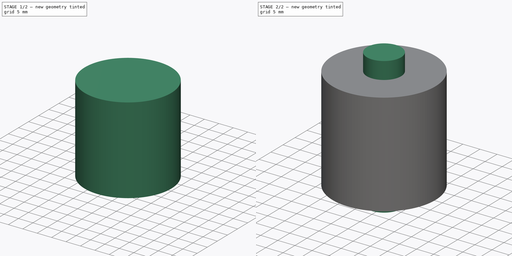
[diagram: build sequence overview — one tinted view per stage of 2, left to right]
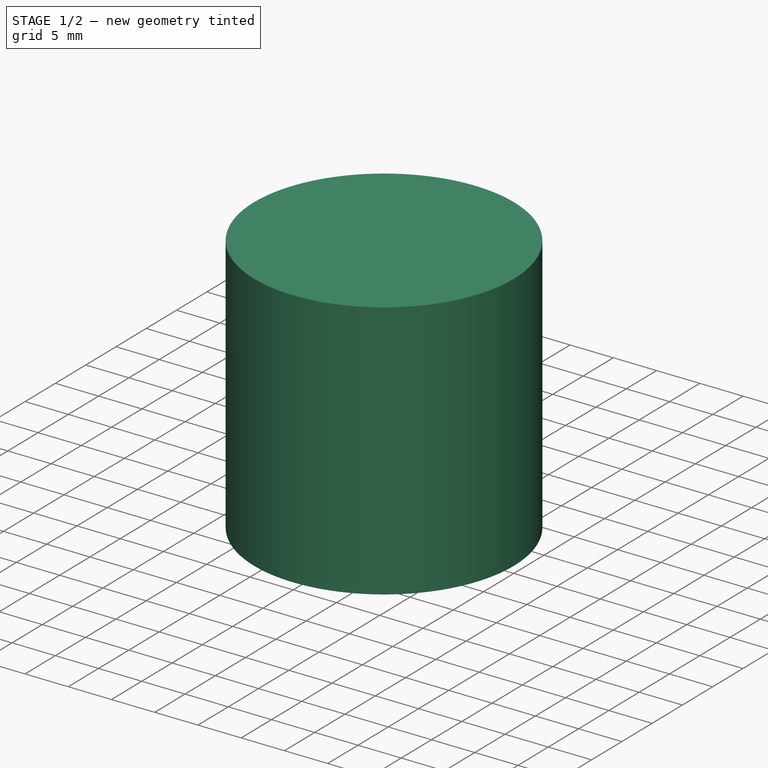
[diagram: stage 1 of 2 — iso view after this stage's code; geometry added in this stage tinted green]
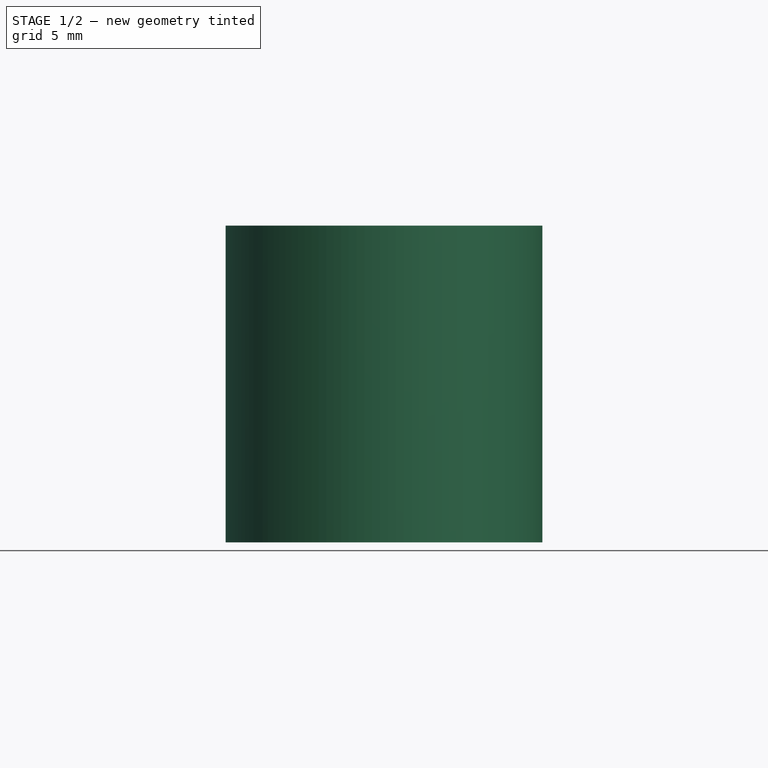
[diagram: stage 1 of 2 — front view after this stage's code; geometry added in this stage tinted green]
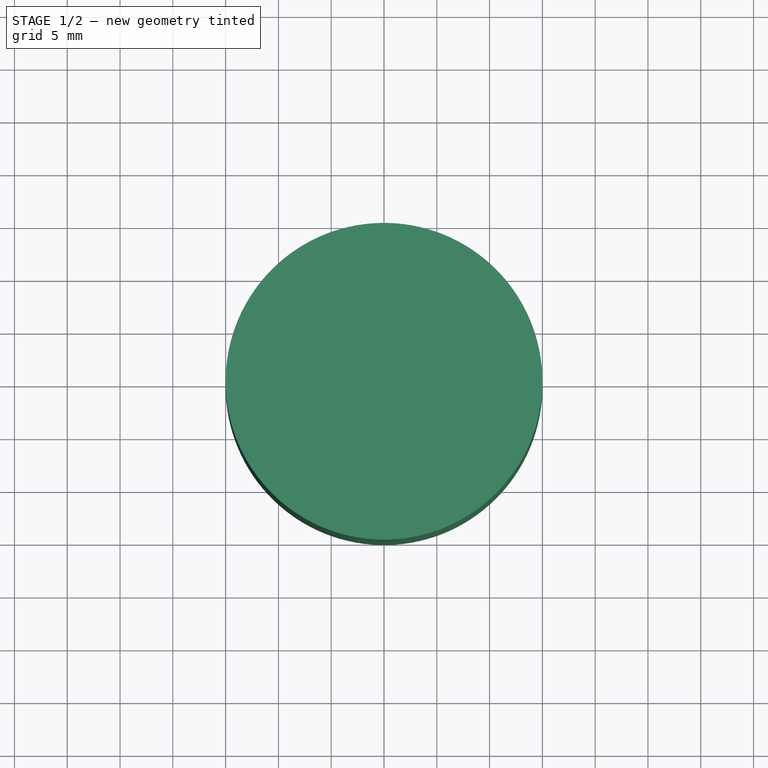
[diagram: stage 1 of 2 — top view after this stage's code; geometry added in this stage tinted green]
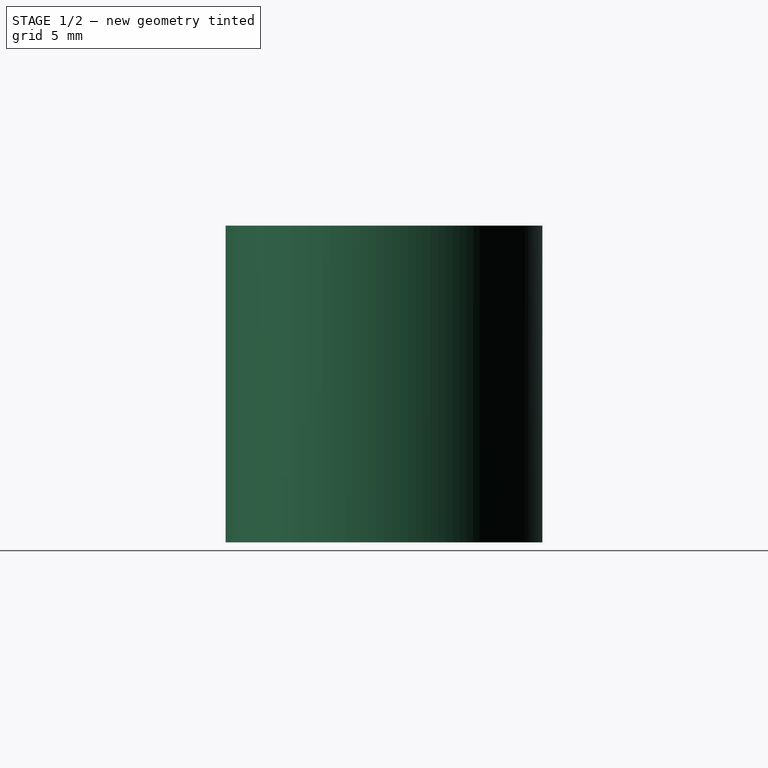
[diagram: stage 1 of 2 — right view after this stage's code; geometry added in this stage tinted green]
FCSTD DOCUMENT  (FreeCAD 0.20R28904 (Git))
Label: pottery-roller
License: All rights reserved
LicenseURL: http://en.wikipedia.org/wiki/All_rights_reserved
objects: Sketcher::SketchObject×3, PartDesign::Pad×2, PartDesign::Body×2, Spreadsheet::Sheet×1, PartDesign::Plane×1
note: 10 computed .brp shape members not serialized (recipe doc carries the construction recipe); baked Part::Feature solids carry a one-line shape summary decoded from their .brp

FEATURE [Sketcher::SketchObject] Sketch  label="Roller001"
  FullyConstrained = true
  MapMode = 5
  Support = -> [XY_Plane]
  expr: Constraints[1] = <<Parameters>>.roller_diameter
  sketch-geometry (1):
    g0: Circle CenterX=0 CenterY=0 CenterZ=0 NormalX=0 NormalY=0 NormalZ=1 AngleXU=0 Radius=15
  constraints (2):
    c: Coincident(g0,g-1)
    c: Diameter(g0) = 30
FEATURE [PartDesign::Pad] Pad
  Direction = (0,0,1)
  Length = 30
  Length2 = 10
  Midplane = true
  Profile = -> Sketch
  ReferenceAxis = -> Sketch [N_Axis]
  Type = 0
  expr: Length = <<Parameters>>.roller_height
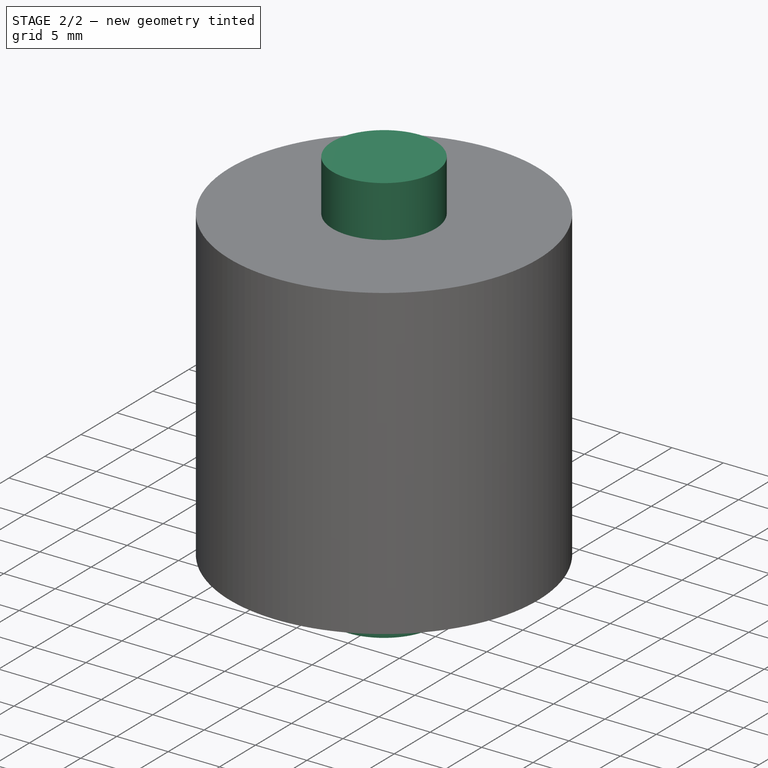
[diagram: stage 2 of 2 — iso view after this stage's code; geometry added in this stage tinted green]
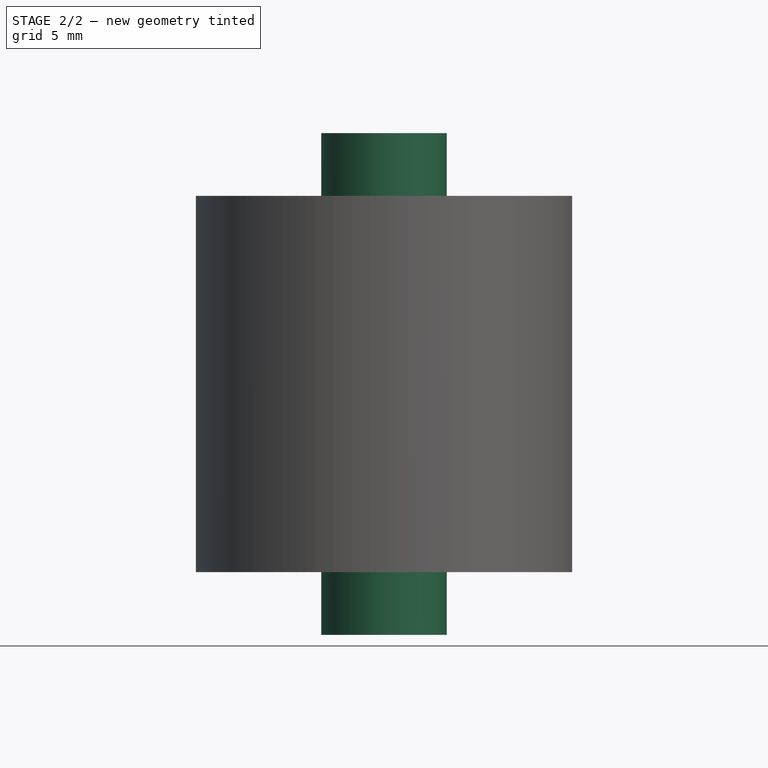
[diagram: stage 2 of 2 — front view after this stage's code; geometry added in this stage tinted green]
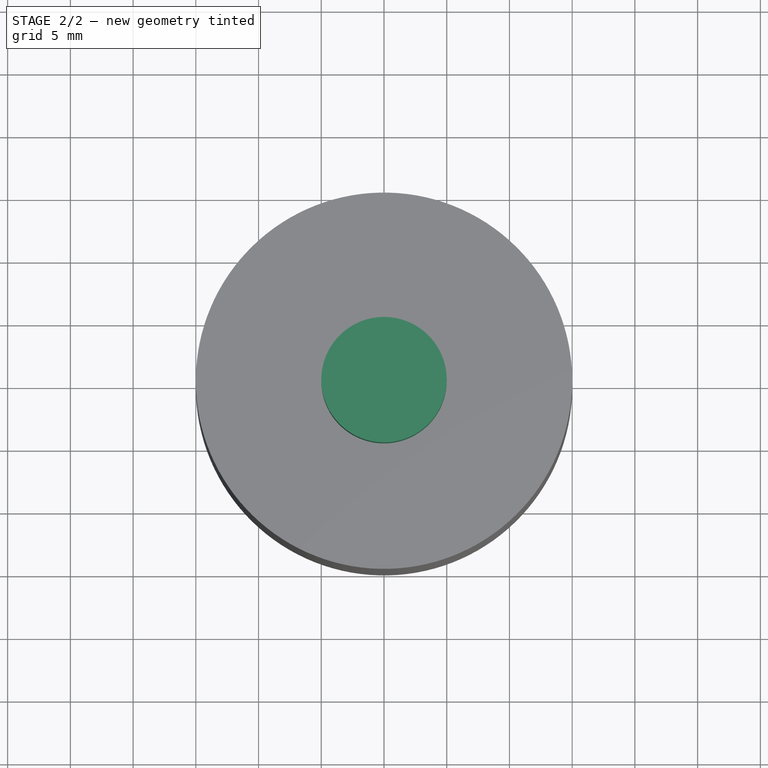
[diagram: stage 2 of 2 — top view after this stage's code; geometry added in this stage tinted green]
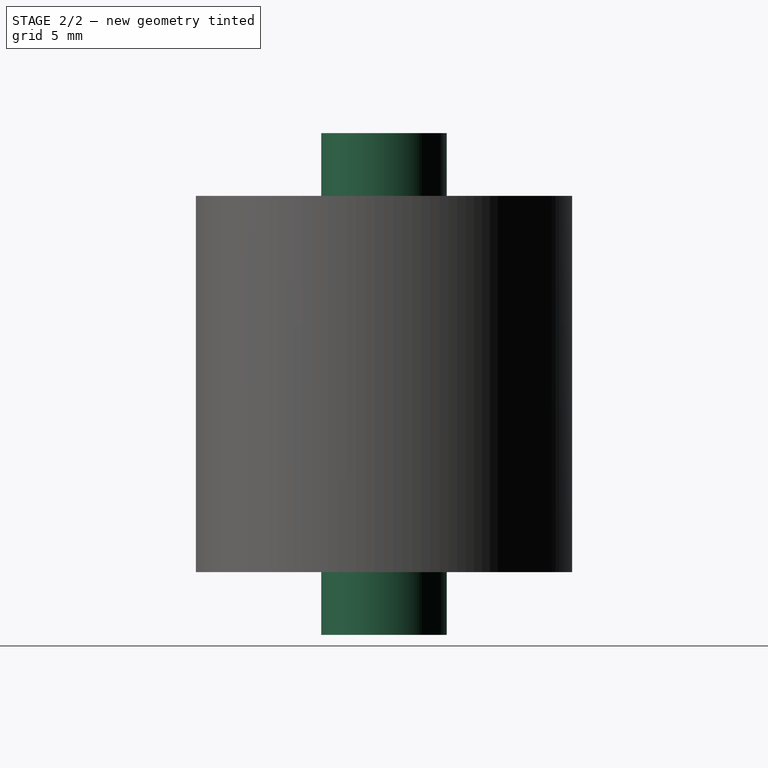
[diagram: stage 2 of 2 — right view after this stage's code; geometry added in this stage tinted green]
FEATURE [Spreadsheet::Sheet] Spreadsheet  label="Parameters"
  cells = A1=roller_radius; B1(roller_radius)=15; A2=roller_diameter; B2(roller_diameter)==2 * roller_radius; A3=roller_height; B3(roller_height)==2 * roller_radius; A4=roller_axle_radius; B4(roller_axle_radius)=5; A5=roller_axle_diameter; B5(roller_axle_diameter)==2 * roller_axle_radius; A6=roller_axle_height; B6(roller_axle_height)=5; A7=handle_diameter; B7(handle_diameter)=20; A8=handle_length; B8(handle_length)=50; A9=handle_arm_width; B9(handle_arm_width)=15; A10=handle_roller_clearance; B10(handle_roller_clearance)=3; A11=handle_axle_clearance; B11(handle_axle_clearance)=1; A12=pip_diameter; B12(pip_diameter)=2; A13=pip_pitch; B13(pip_pitch)=2; A14=pip_depth; B14(pip_depth)=2
FEATURE [Sketcher::SketchObject] Sketch001  label="RollerArm001"
  FullyConstrained = true
  MapMode = 5
  Placement = pos=(0,0,0) rot=(0.57735,0.57735,0.57735;2.0944rad)
  Support = -> [YZ_Plane001]
  expr: Constraints[23] = <<Parameters>>.handle_arm_width
  expr: Constraints[24] = <<Parameters>>.handle_arm_width
  expr: Constraints[25] = Spreadsheet.handle_diameter
  expr: Constraints[27] = <<Parameters>>.handle_length
  expr: Constraints[28] = <<Parameters>>.handle_roller_clearance + <<Parameters>>.roller_radius + <<Parameters>>.roller_axle_diameter
  expr: Constraints[30] = <<Parameters>>.roller_radius + <<Parameters>>.handle_roller_clearance
  expr: Constraints[31] = <<Parameters>>.handle_roller_clearance + <<Parameters>>.roller_radius + <<Parameters>>.roller_axle_diameter
  expr: Constraints[32] = <<Parameters>>.handle_arm_width
  expr: Constraints[33] = <<Parameters>>.handle_arm_width
  expr: Constraints[34] = 0.5 * <<Parameters>>.roller_height + <<Parameters>>.handle_axle_clearance
  expr: Constraints[35] = 0.5 * <<Parameters>>.roller_height + <<Parameters>>.handle_axle_clearance
  sketch-geometry (13):
    g0: LineSegment StartX=10 StartY=16 StartZ=0 EndX=-18 EndY=16 EndZ=0
    g1: LineSegment StartX=-18 StartY=16 StartZ=0 EndX=-18 EndY=-16 EndZ=0
    g2: LineSegment StartX=-18 StartY=-16 StartZ=0 EndX=10 EndY=-16 EndZ=0
    g3: LineSegment StartX=10 StartY=-16 StartZ=0 EndX=10 EndY=-31 EndZ=0
    g4: LineSegment StartX=10 StartY=-31 StartZ=0 EndX=-33 EndY=-31 EndZ=0
    g5: LineSegment StartX=-33 StartY=-31 StartZ=0 EndX=-33 EndY=-10 EndZ=0
    g6: LineSegment StartX=-33 StartY=-10 StartZ=0 EndX=-83 EndY=-10 EndZ=0
    g7: LineSegment StartX=-83 StartY=-10 StartZ=0 EndX=-83 EndY=10 EndZ=0
    g8: LineSegment StartX=-83 StartY=10 StartZ=0 EndX=-33 EndY=10 EndZ=0
    g9: LineSegment StartX=-33 StartY=10 StartZ=0 EndX=-33 EndY=31 EndZ=0
    g10: LineSegment StartX=-33 StartY=31 StartZ=0 EndX=10 EndY=31 EndZ=0
    g11: LineSegment StartX=10 StartY=31 StartZ=0 EndX=10 EndY=16 EndZ=0
    g12: GeomPoint X=0 Y=0 Z=0
  constraints (36):
    c: Horizontal(g0)
    c: Coincident(g0,g1)
    c: Vertical(g1)
    c: Coincident(g1,g2)
    c: Horizontal(g2)
    c: Coincident(g2,g3)
    c: Vertical(g3)
    c: Coincident(g3,g4)
    c: Horizontal(g4)
    c: Coincident(g4,g5)
    c: Vertical(g5)
    c: Coincident(g5,g6)
    c: Horizontal(g6)
    c: Coincident(g6,g7)
    c: Coincident(g7,g8)
    c: Horizontal(g8)
    c: Coincident(g8,g9)
    c: Vertical(g9)
    c: Coincident(g9,g10)
    c: Horizontal(g10)
    c: Coincident(g10,g11)
    c: Coincident(g11,g0)
    c: Vertical(g11)
    c: DistanceY(g11,g11) = 15
    c: DistanceY(g3,g3) = 15
    c: DistanceY(g7,g7) = 20
    c: Symmetric(g7,g6,g-1)
    c: DistanceX(g8,g8) = 50
    c: DistanceX(g0,g0) = 28
    c: Coincident(g12,g-1)
    c: DistanceX(g1,g12) = 18
    c: DistanceX(g2,g2) = 28
    c: DistanceX(g5,g1) = 15
    c: DistanceX(g8,g0) = 15
    c: DistanceY(g12,g0) = 16
    c: DistanceY(g2,g12) = 16
FEATURE [PartDesign::Body] Body001  label="RollerArm"
  Group = -> [Sketch001]
  Origin = -> Origin001
FEATURE [Sketcher::SketchObject] Sketch002  label="RollerAxle"
  FullyConstrained = true
  MapMode = 5
  Support = -> [XY_Plane]
  expr: Constraints[1] = <<Parameters>>.roller_axle_diameter
  sketch-geometry (1):
    g0: Circle CenterX=0 CenterY=0 CenterZ=0 NormalX=0 NormalY=0 NormalZ=1 AngleXU=0 Radius=5
  constraints (2):
    c: Coincident(g0,g-1)
    c: Diameter(g0) = 10
FEATURE [PartDesign::Pad] Pad001
  BaseFeature = -> Pad
  Direction = (0,0,1)
  Length = 40
  Length2 = 10
  Midplane = true
  Profile = -> Sketch002
  ReferenceAxis = -> Sketch002 [N_Axis]
  Type = 0
  expr: Length = <<Parameters>>.roller_height + 2 * <<Parameters>>.roller_axle_height
FEATURE [PartDesign::Plane] DatumPlane
  AttachmentOffset = pos=(0,0,15) rot=(0,0,1;0rad)
  Length = 60
  MapMode = 3
  Placement = pos=(0,-15,3.3e-15) rot=(1,0,0;1.5708rad)
  ResizeMode = 0
  Support = -> [Pad001]
  Width = 60
  expr: .AttachmentOffset.Base.z = <<Parameters>>.roller_radius
FEATURE [PartDesign::Body] Body  label="Roller"
  Group = -> [Sketch,Pad,Sketch002,Pad001,DatumPlane]
  Origin = -> Origin
  Tip = -> Pad001
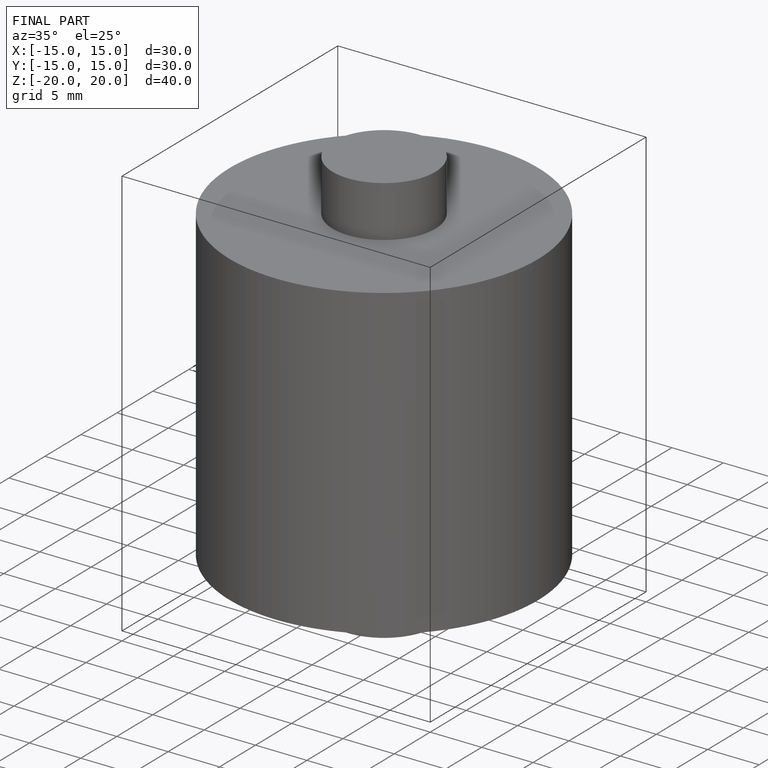
[diagram: finished part — iso view with bounding-box wireframe]
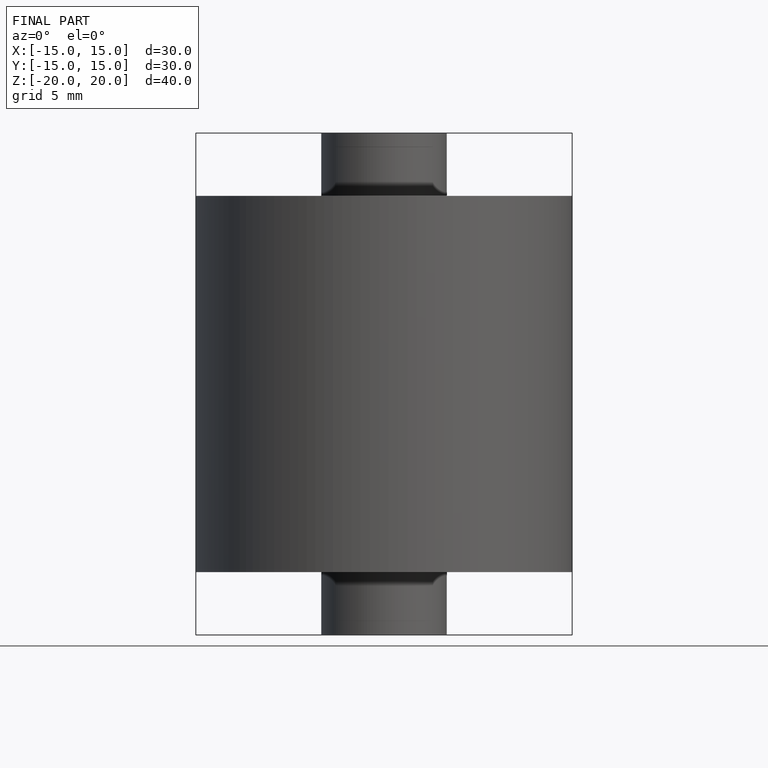
[diagram: finished part — front view with bounding-box wireframe]
